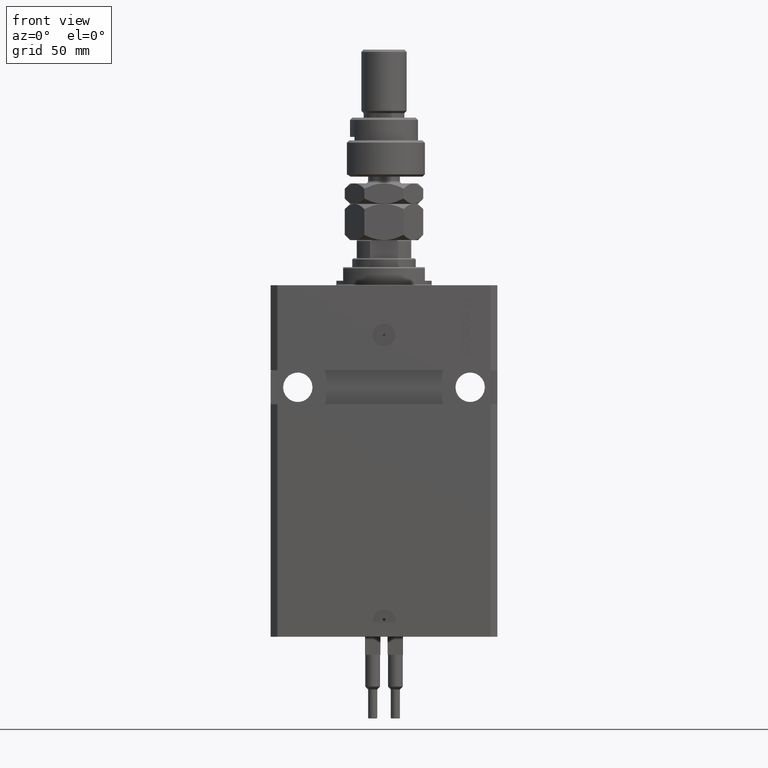
[diagram: clean part render]
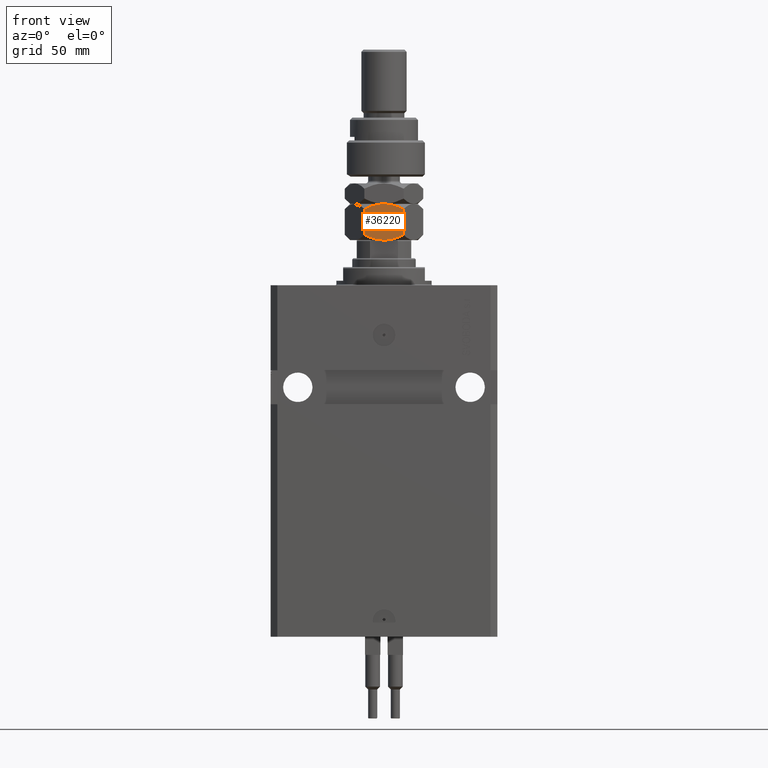
[diagram: same view with one face highlighted and labeled with its STEP entity id]
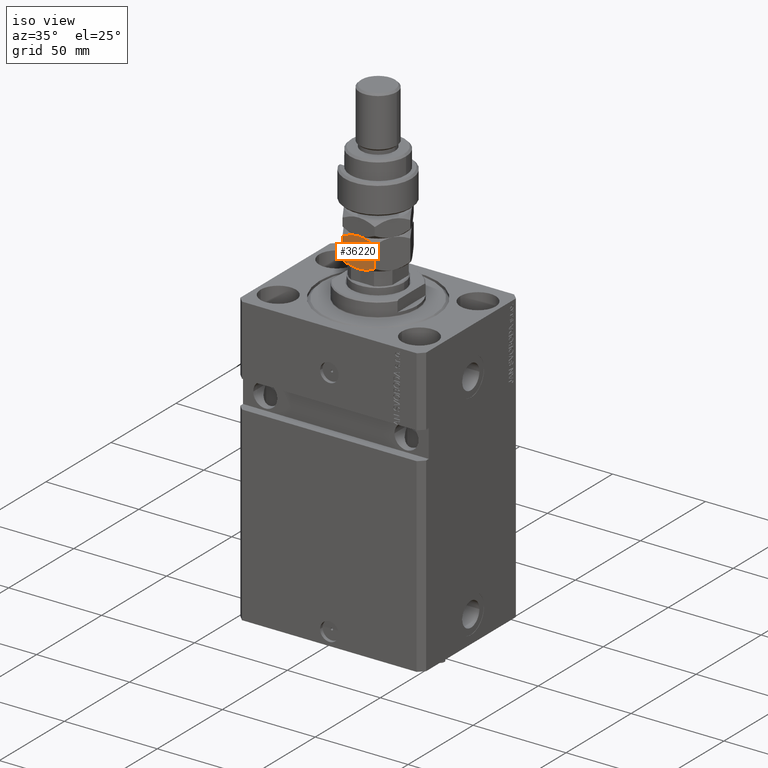
[diagram: same view with one face highlighted and labeled with its STEP entity id]
A machine part, front view. The second image highlights one B-rep face of the part: STEP entity #36220.
A second angle (iso view) of the same face is appended — the face is thin or edge-on in the first view.
In plain terms, the highlighted planar face has unit normal (-0, 1, 0).
Its self-contained STEP definition (entity closure, byte-faithful):
#590 = FACE_OUTER_BOUND ( 'NONE', #21587, .T. ) ;
#2057 = VERTEX_POINT ( 'NONE', #2248 ) ;
#2248 = CARTESIAN_POINT ( 'NONE',  ( 15.00000000000000000, -8.660254037844389075, 13.67949192431123961 ) ) ;
#2283 = CARTESIAN_POINT ( 'NONE',  ( 4.247772349543483372, -14.86805556622359425, 15.55242859148698109 ) ) ;
#3984 = VECTOR ( 'NONE', #29620, 1000.000000000000000 ) ;
#4256 = CARTESIAN_POINT ( 'NONE',  ( 7.499999999999993783, -12.99038105676658006, 16.00000000000000000 ) ) ;
#4389 = B_SPLINE_CURVE_WITH_KNOTS ( 'NONE', 3,
 ( #19616, #19364, #27231, #35600, #51346, #47151 ),
 .UNSPECIFIED., .F., .F.,
 ( 4, 2, 4 ),
 ( 0.008977392552884447263, 0.01343452311421656532, 0.01789165367554868338 ),
 .UNSPECIFIED. ) ;
#6199 = VERTEX_POINT ( 'NONE', #4256 ) ;
#6288 = LINE ( 'NONE', #22543, #3984 ) ;
#6853 = ORIENTED_EDGE ( 'NONE', *, *, #51405, .T. ) ;
#8034 = LINE ( 'NONE', #16169, #20212 ) ;
#8462 = ORIENTED_EDGE ( 'NONE', *, *, #15099, .F. ) ;
#9307 = CARTESIAN_POINT ( 'NONE',  ( -3.416099238086855886E-15, -17.32050807568877104, 13.67949192431124317 ) ) ;
#9702 = CARTESIAN_POINT ( 'NONE',  ( 13.82389157469335750, -9.339280553791367012, 1.641481559741792884 ) ) ;
#10050 = B_SPLINE_CURVE_WITH_KNOTS ( 'NONE', 3,
 ( #46148, #9702, #33565, #21513, #21772, #10739, #49566, #13650 ),
 .UNSPECIFIED., .F., .F.,
 ( 4, 2, 2, 4 ),
 ( 2.544309033642853415E-07, 0.004488823491893907842, 0.006733108022389181456, 0.008977392552884455937 ),
 .UNSPECIFIED. ) ;
#10739 = CARTESIAN_POINT ( 'NONE',  ( 8.823580389329300999, -12.22621156269320331, 0.05953537397470176629 ) ) ;
#11864 = EDGE_CURVE ( 'NONE', #29308, #15269, #23560, .T. ) ;
#13650 = CARTESIAN_POINT ( 'NONE',  ( 7.499999999999994671, -12.99038105676658184, 0.000000000000000000 ) ) ;
#15099 = EDGE_CURVE ( 'NONE', #2057, #33740, #6288, .T. ) ;
#15269 = VERTEX_POINT ( 'NONE', #41293 ) ;
#16035 = EDGE_CURVE ( 'NONE', #33740, #29308, #10050, .T. ) ;
#16169 = CARTESIAN_POINT ( 'NONE',  ( -3.035766082959412415E-15, -17.32050807568877104, 16.00000000000000000 ) ) ;
#16491 = ORIENTED_EDGE ( 'NONE', *, *, #39521, .F. ) ;
#16876 = ORIENTED_EDGE ( 'NONE', *, *, #42479, .F. ) ;
#17764 = CARTESIAN_POINT ( 'NONE',  ( 6.176419610670694560, -13.75455055083996214, 15.94046462602530312 ) ) ;
#17826 = CARTESIAN_POINT ( 'NONE',  ( 6.195449321423083688, -13.74356374221447119, -1.770863548392988866E-15 ) ) ;
#18020 = CARTESIAN_POINT ( 'NONE',  ( 7.499999999999993783, -12.99038105676658006, 16.00000000000000000 ) ) ;
#18273 = CARTESIAN_POINT ( 'NONE',  ( 4.881674457977372761, -14.50207201327941320, 15.71619733805371411 ) ) ;
#18539 = CARTESIAN_POINT ( 'NONE',  ( 2.378834511187501111, -15.94708733029709791, 14.93551393225600066 ) ) ;
#19084 = CARTESIAN_POINT ( 'NONE',  ( 7.499999999999994671, -12.99038105676658184, 0.000000000000000000 ) ) ;
#19364 = CARTESIAN_POINT ( 'NONE',  ( 8.804550678576907430, -12.23719837131869248, 16.00000000000000000 ) ) ;
#19616 = CARTESIAN_POINT ( 'NONE',  ( 7.499999999999993783, -12.99038105676658006, 16.00000000000000000 ) ) ;
#20212 = VECTOR ( 'NONE', #36597, 1000.000000000000000 ) ;
#21513 = CARTESIAN_POINT ( 'NONE',  ( 10.75222765045651308, -11.11270654730956586, 0.4475714085130263475 ) ) ;
#21587 = EDGE_LOOP ( 'NONE', ( #51129, #8462, #16876, #16491, #6853, #42172 ) ) ;
#21772 = CARTESIAN_POINT ( 'NONE',  ( 10.11832554202262102, -11.47869010025374870, 0.2838026619462938327 ) ) ;
#22543 = CARTESIAN_POINT ( 'NONE',  ( 15.00000000000000000, -8.660254037844389075, 16.00000000000000000 ) ) ;
#22997 = CARTESIAN_POINT ( 'NONE',  ( 1.176108425306638505, -16.64148155974179488, 14.35851844025821755 ) ) ;
#23560 = B_SPLINE_CURVE_WITH_KNOTS ( 'NONE', 3,
 ( #41934, #17826, #33811, #37492, #33553, #49029 ),
 .UNSPECIFIED., .F., .F.,
 ( 4, 2, 4 ),
 ( 0.008977392552884455937, 0.01343452311421657053, 0.01789165367554868685 ),
 .UNSPECIFIED. ) ;
#27231 = CARTESIAN_POINT ( 'NONE',  ( 10.08691881950258917, -11.49682277995505331, 15.76967007806078591 ) ) ;
#29308 = VERTEX_POINT ( 'NONE', #19084 ) ;
#29340 = AXIS2_PLACEMENT_3D ( 'NONE', #36244, #51472, #32312 ) ;
#29620 = DIRECTION ( 'NONE',  ( -0.000000000000000000, -0.000000000000000000, -1.000000000000000000 ) ) ;
#32312 = DIRECTION ( 'NONE',  ( -0.8660254037844388186, -0.4999999999999996669, 0.000000000000000000 ) ) ;
#33553 = CARTESIAN_POINT ( 'NONE',  ( 1.174746544192159625, -16.64226784216984711, 1.642267842169777836 ) ) ;
#33565 = CARTESIAN_POINT ( 'NONE',  ( 12.62116548881249756, -10.03367478323606754, 1.064486067744006892 ) ) ;
#33740 = VERTEX_POINT ( 'NONE', #39942 ) ;
#33750 = CARTESIAN_POINT ( 'NONE',  ( 6.843123817691747490, -13.36962869744650284, 16.00000000000000711 ) ) ;
#33811 = CARTESIAN_POINT ( 'NONE',  ( 4.913081180497406386, -14.48393933357810681, 0.2303299219392160313 ) ) ;
#35600 = CARTESIAN_POINT ( 'NONE',  ( 12.61607045183964360, -10.03661640420387080, 14.93952096862912171 ) ) ;
#36220 = ADVANCED_FACE ( 'NONE', ( #590 ), #48569, .F. ) ;
#36244 = CARTESIAN_POINT ( 'NONE',  ( -3.035766082959412415E-15, -17.32050807568877104, 16.00000000000000000 ) ) ;
#36597 = DIRECTION ( 'NONE',  ( -0.000000000000000000, -0.000000000000000000, -1.000000000000000000 ) ) ;
#37492 = CARTESIAN_POINT ( 'NONE',  ( 2.383929548160349299, -15.94414570932928576, 1.060479031370876957 ) ) ;
#39521 = EDGE_CURVE ( 'NONE', #50537, #6199, #40176, .T. ) ;
#39942 = CARTESIAN_POINT ( 'NONE',  ( 15.00000000000000000, -8.660254037844389075, 2.320508075688767047 ) ) ;
#40176 = B_SPLINE_CURVE_WITH_KNOTS ( 'NONE', 3,
 ( #42394, #22997, #18539, #2283, #18273, #17764, #33750, #18020 ),
 .UNSPECIFIED., .F., .F.,
 ( 4, 2, 2, 4 ),
 ( 2.544309033646407248E-07, 0.004488823491893905240, 0.006733108022389175384, 0.008977392552884447263 ),
 .UNSPECIFIED. ) ;
#41293 = CARTESIAN_POINT ( 'NONE',  ( -2.796947266322166691E-15, -17.32050807568877104, 2.320508075688761718 ) ) ;
#41934 = CARTESIAN_POINT ( 'NONE',  ( 7.499999999999994671, -12.99038105676658184, 0.000000000000000000 ) ) ;
#42172 = ORIENTED_EDGE ( 'NONE', *, *, #11864, .F. ) ;
#42394 = CARTESIAN_POINT ( 'NONE',  ( -3.416099238086855886E-15, -17.32050807568877104, 13.67949192431124317 ) ) ;
#42479 = EDGE_CURVE ( 'NONE', #6199, #2057, #4389, .T. ) ;
#46148 = CARTESIAN_POINT ( 'NONE',  ( 15.00000000000000000, -8.660254037844389075, 2.320508075688767047 ) ) ;
#47151 = CARTESIAN_POINT ( 'NONE',  ( 15.00000000000000000, -8.660254037844389075, 13.67949192431123961 ) ) ;
#48569 = PLANE ( 'NONE',  #29340 ) ;
#49029 = CARTESIAN_POINT ( 'NONE',  ( -2.796947266322166691E-15, -17.32050807568877104, 2.320508075688761718 ) ) ;
#49566 = CARTESIAN_POINT ( 'NONE',  ( 8.156876182308243628, -12.61113341608666083, -1.722865014715246890E-15 ) ) ;
#50537 = VERTEX_POINT ( 'NONE', #9307 ) ;
#51129 = ORIENTED_EDGE ( 'NONE', *, *, #16035, .F. ) ;
#51346 = CARTESIAN_POINT ( 'NONE',  ( 13.82525345580783416, -9.338494271363316557, 14.35773215783021861 ) ) ;
#51405 = EDGE_CURVE ( 'NONE', #50537, #15269, #8034, .T. ) ;
#51472 = DIRECTION ( 'NONE',  ( -0.4999999999999996669, 0.8660254037844388186, 0.000000000000000000 ) ) ;